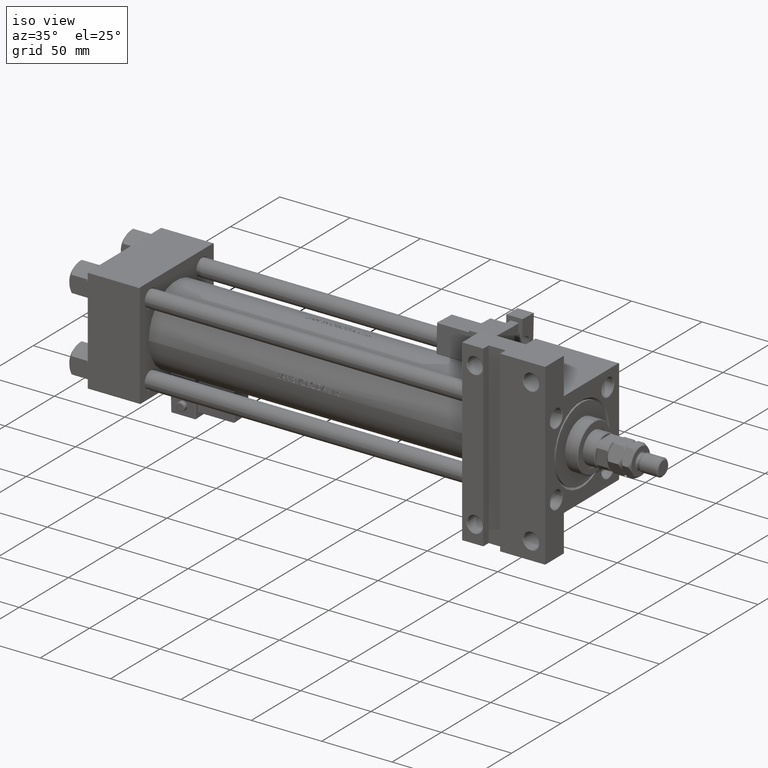
[diagram: clean part render]
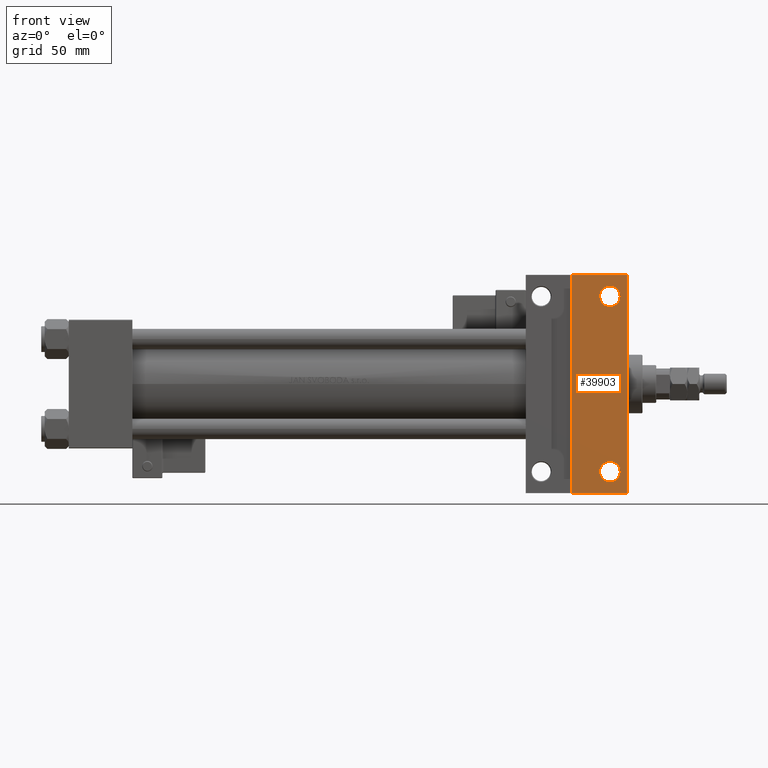
[diagram: tour spotlight — one face highlighted and labeled with its STEP entity id]
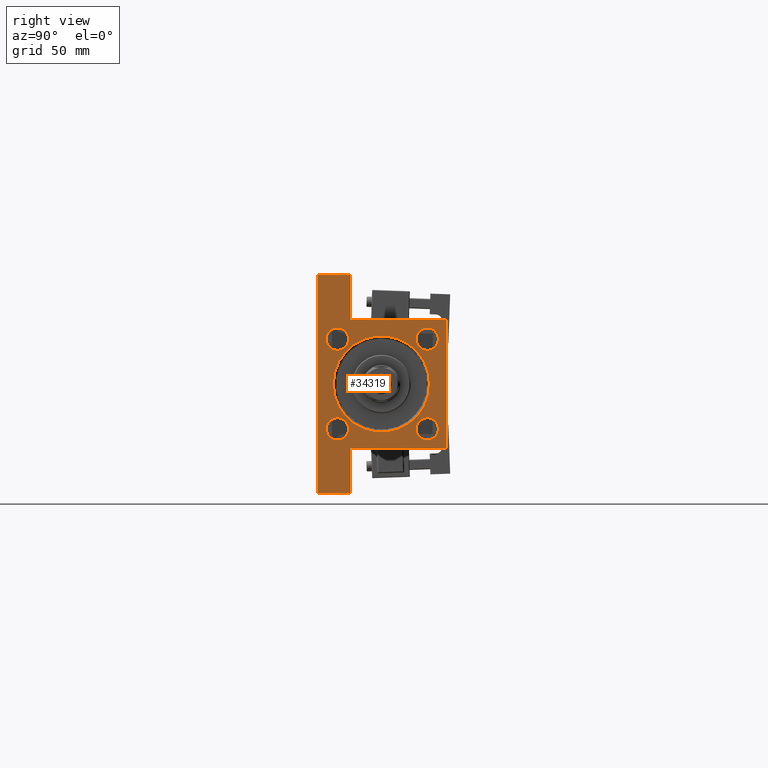
[diagram: tour spotlight — one face highlighted and labeled with its STEP entity id]
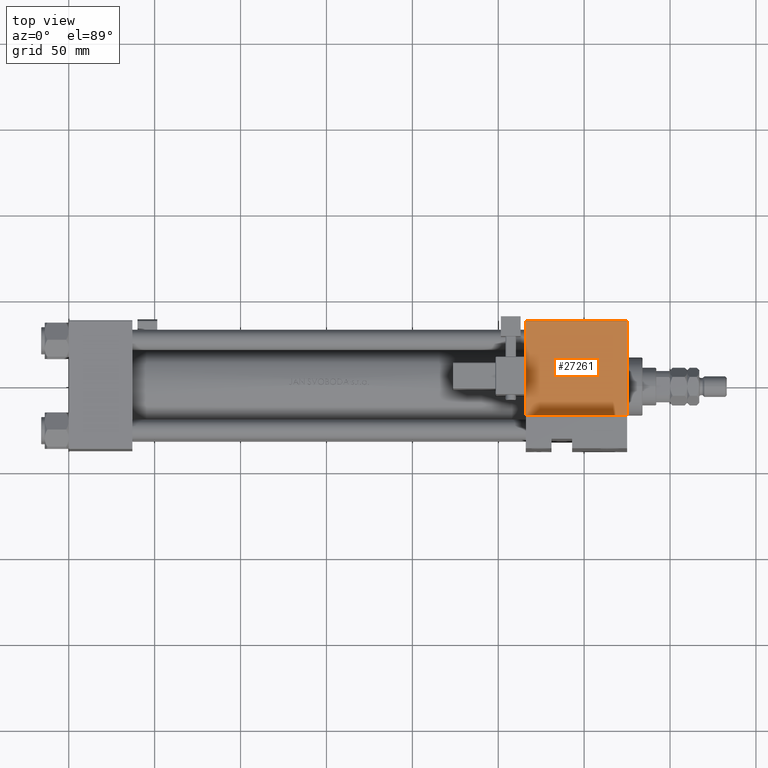
[diagram: tour spotlight — one face highlighted and labeled with its STEP entity id]
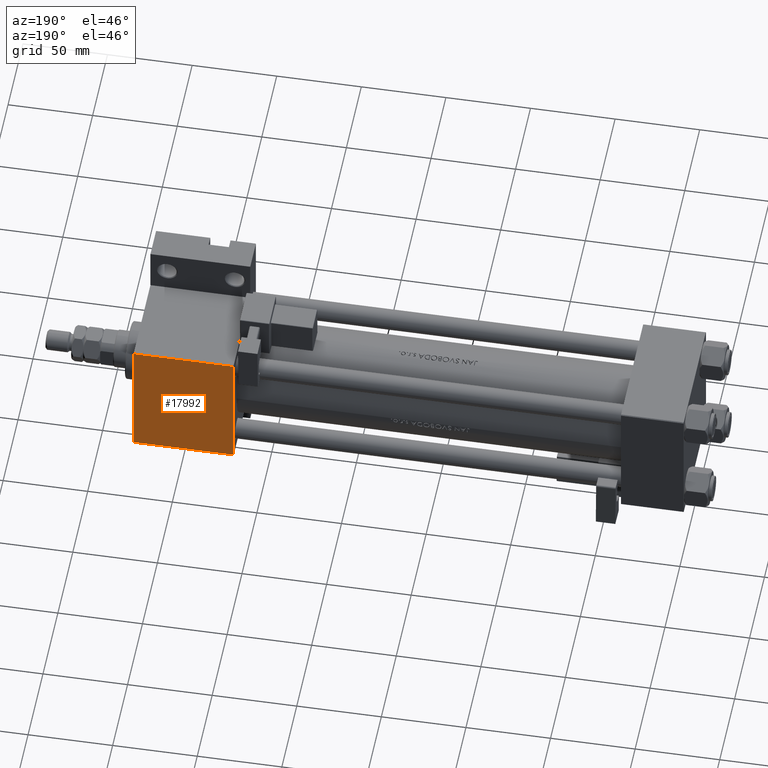
[diagram: tour spotlight — one face highlighted and labeled with its STEP entity id]
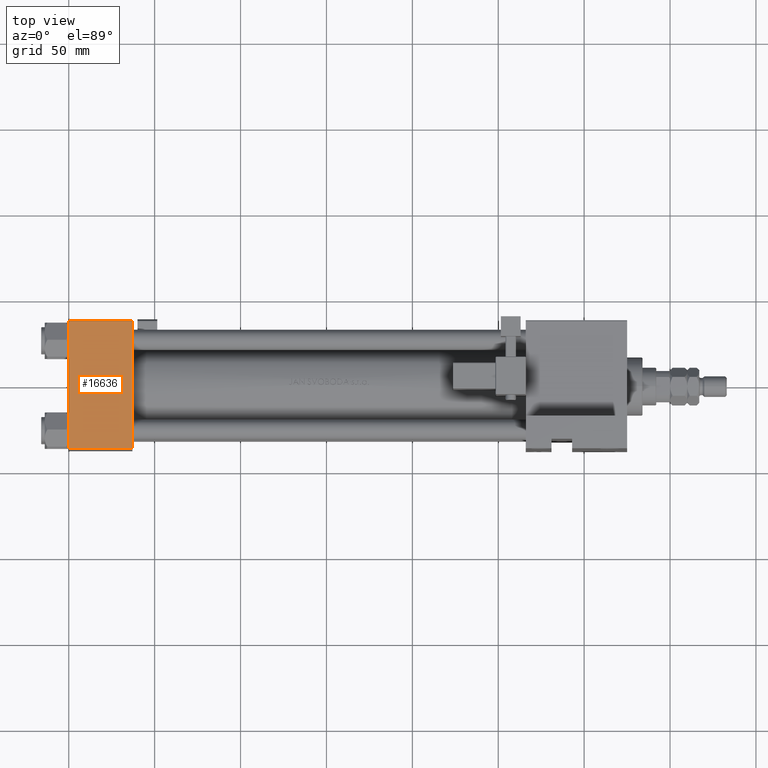
[diagram: tour spotlight — one face highlighted and labeled with its STEP entity id]
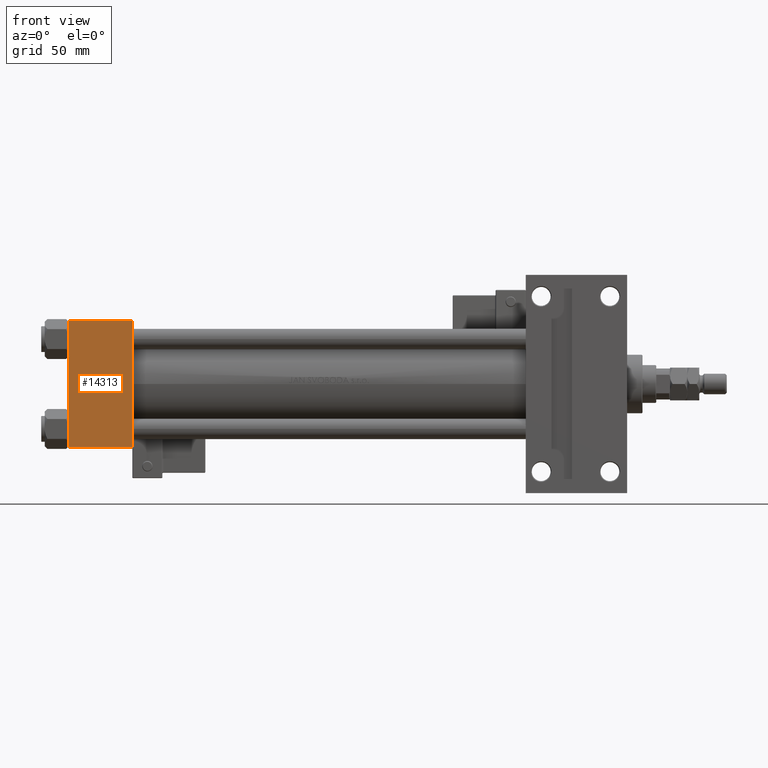
[diagram: tour spotlight — one face highlighted and labeled with its STEP entity id]
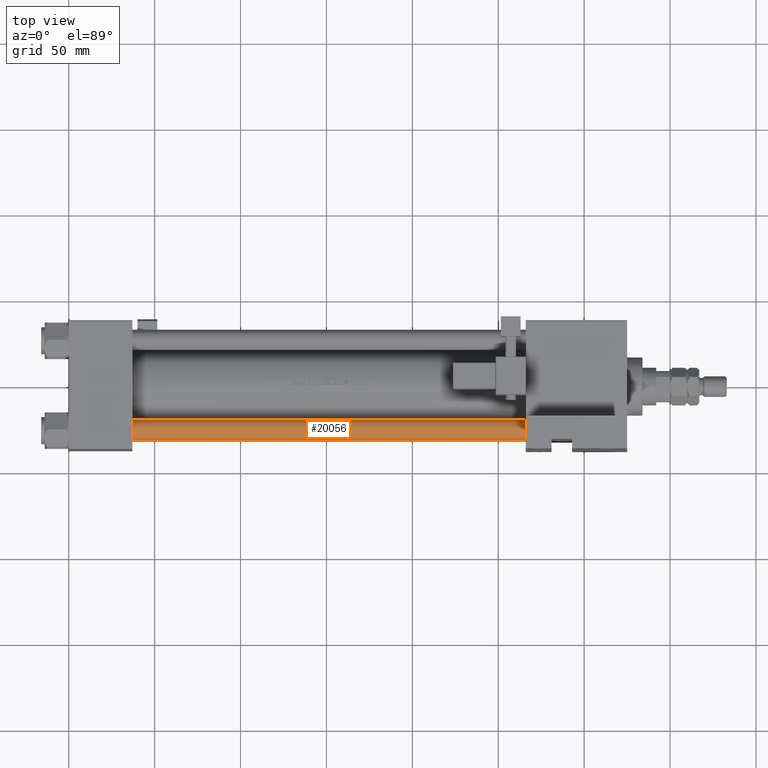
[diagram: tour spotlight — one face highlighted and labeled with its STEP entity id]
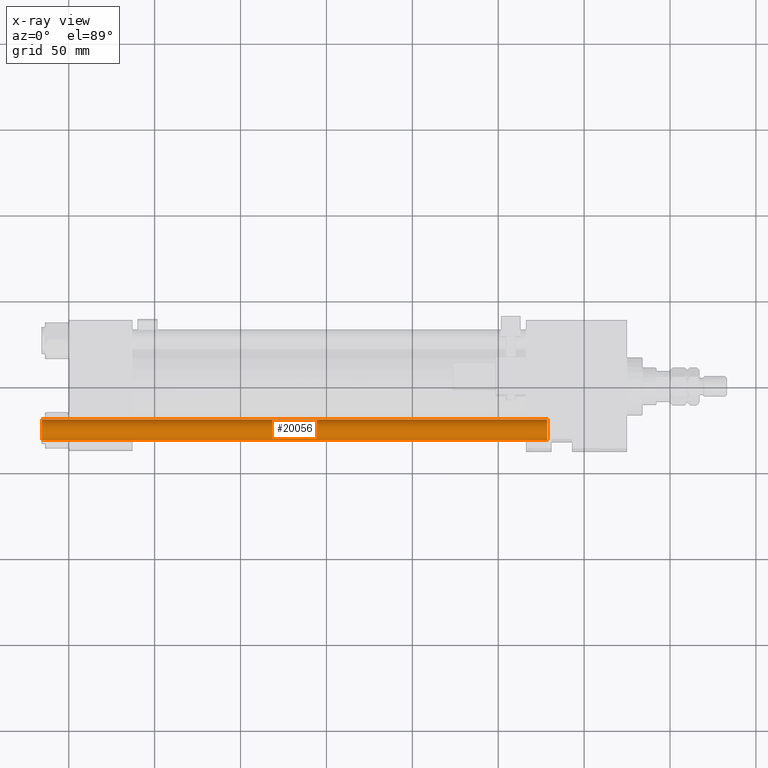
[diagram: x-ray of the same camera — body ghosted, this tour face saturated]
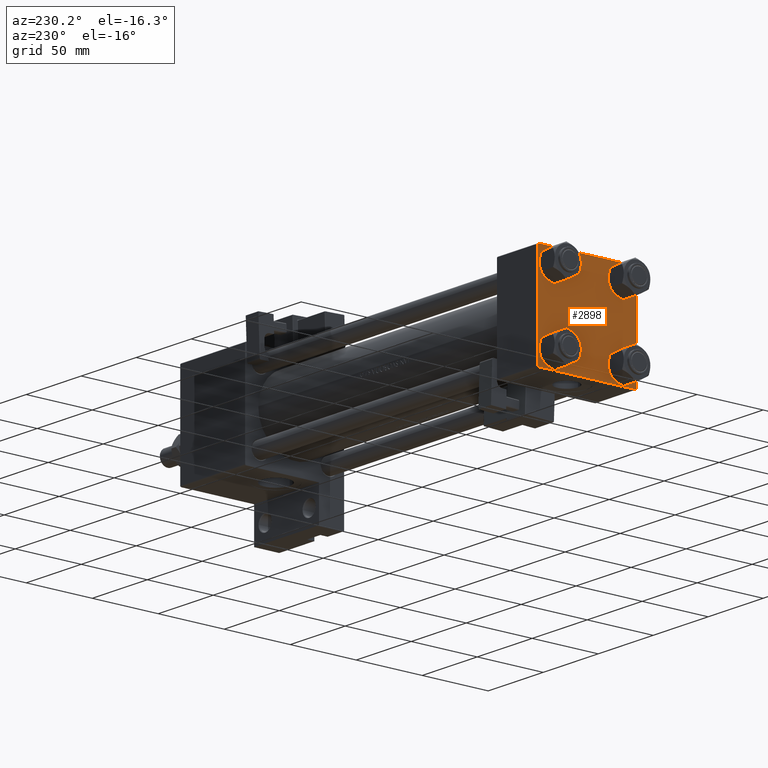
[diagram: tour spotlight — one face highlighted and labeled with its STEP entity id]
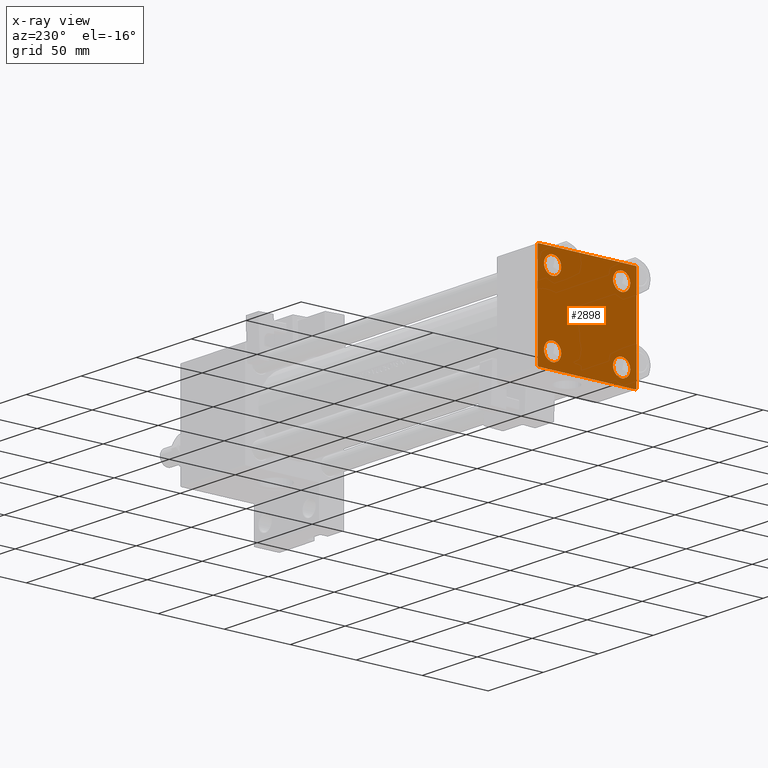
[diagram: x-ray of the same camera — body ghosted, this tour face saturated]
A machine part: a face-by-face anatomy tour. The part has 1306 B-rep faces; the first image is the clean iso view, then the 8 largest visible faces are spotlighted one at a time (largest first), each with its STEP entity span.

Face 1 — front view, entity #39903. In plain terms, the highlighted planar face has unit normal (0, -1, 0).
Definition (entity closure, byte-faithful):
#1192 = AXIS2_PLACEMENT_3D ( 'NONE', #43460, #43960, #39046 ) ;
#1264 = VERTEX_POINT ( 'NONE', #46276 ) ;
#1486 = DIRECTION ( 'NONE',  ( 1.000000000000000000, 0.000000000000000000, 0.000000000000000000 ) ) ;
#1857 = VERTEX_POINT ( 'NONE', #23266 ) ;
#1902 = AXIS2_PLACEMENT_3D ( 'NONE', #41600, #17434, #9111 ) ;
#2002 = LINE ( 'NONE', #37102, #17347 ) ;
#2117 = CARTESIAN_POINT ( 'NONE',  ( 320.9994999999998981, 51.00000000000000000, -37.50000000000000000 ) ) ;
#3148 = DIRECTION ( 'NONE',  ( -1.000000000000000000, 0.000000000000000000, -0.000000000000000000 ) ) ;
#3737 = DIRECTION ( 'NONE',  ( 0.000000000000000000, -1.000000000000000000, 0.000000000000000000 ) ) ;
#5793 = EDGE_CURVE ( 'NONE', #1857, #17843, #2002, .T. ) ;
#9111 = DIRECTION ( 'NONE',  ( -1.000000000000000000, 0.000000000000000000, 0.000000000000000000 ) ) ;
#9635 = EDGE_LOOP ( 'NONE', ( #45994, #32237, #36504, #23169 ) ) ;
#10203 = CIRCLE ( 'NONE', #29264, 5.999499999999935440 ) ;
#10296 = CARTESIAN_POINT ( 'NONE',  ( 266.0000000000000000, -63.50000000000002842, -37.50000000000000000 ) ) ;
#10914 = DIRECTION ( 'NONE',  ( -1.000000000000000000, 0.000000000000000000, 0.000000000000000000 ) ) ;
#12035 = LINE ( 'NONE', #43252, #13206 ) ;
#12417 = LINE ( 'NONE', #28266, #30883 ) ;
#13206 = VECTOR ( 'NONE', #3737, 1000.000000000000000 ) ;
#14489 = EDGE_CURVE ( 'NONE', #28610, #26820, #38540, .T. ) ;
#15378 = FACE_BOUND ( 'NONE', #47813, .T. ) ;
#15465 = EDGE_CURVE ( 'NONE', #1264, #30650, #46741, .T. ) ;
#16024 = CARTESIAN_POINT ( 'NONE',  ( 293.0000000000000000, -63.49999999999998579, -37.50000000000000000 ) ) ;
#17347 = VECTOR ( 'NONE', #1486, 1000.000000000000000 ) ;
#17434 = DIRECTION ( 'NONE',  ( -0.000000000000000000, -0.000000000000000000, 1.000000000000000000 ) ) ;
#17843 = VERTEX_POINT ( 'NONE', #23133 ) ;
#18478 = DIRECTION ( 'NONE',  ( -0.000000000000000000, -0.000000000000000000, 1.000000000000000000 ) ) ;
#19201 = CARTESIAN_POINT ( 'NONE',  ( 325.0000000000000000, -63.50000000000002842, -37.50000000000000000 ) ) ;
#21256 = EDGE_CURVE ( 'NONE', #17843, #40172, #12035, .T. ) ;
#21820 = CARTESIAN_POINT ( 'NONE',  ( 309.0004999999999882, 51.00000000000000000, -37.50000000000000000 ) ) ;
#22120 = ORIENTED_EDGE ( 'NONE', *, *, #36823, .T. ) ;
#23133 = CARTESIAN_POINT ( 'NONE',  ( 325.0000000000000000, 63.49999999999997158, -37.50000000000000000 ) ) ;
#23169 = ORIENTED_EDGE ( 'NONE', *, *, #47069, .T. ) ;
#23266 = CARTESIAN_POINT ( 'NONE',  ( 293.0000000000000000, 63.49999999999997158, -37.50000000000000000 ) ) ;
#23423 = CARTESIAN_POINT ( 'NONE',  ( 325.0000000000000000, 37.50000000000000000, -37.50000000000000000 ) ) ;
#24405 = EDGE_LOOP ( 'NONE', ( #27827, #22120 ) ) ;
#24960 = CARTESIAN_POINT ( 'NONE',  ( 320.9994999999998981, -51.00000000000000000, -37.50000000000000000 ) ) ;
#26820 = VERTEX_POINT ( 'NONE', #2117 ) ;
#27827 = ORIENTED_EDGE ( 'NONE', *, *, #15465, .T. ) ;
#28216 = AXIS2_PLACEMENT_3D ( 'NONE', #50442, #18478, #10914 ) ;
#28266 = CARTESIAN_POINT ( 'NONE',  ( 293.0000000000000000, -63.49999999999998579, -37.50000000000000000 ) ) ;
#28610 = VERTEX_POINT ( 'NONE', #21820 ) ;
#28896 = EDGE_CURVE ( 'NONE', #1857, #36426, #12417, .T. ) ;
#29231 = DIRECTION ( 'NONE',  ( -0.000000000000000000, -0.000000000000000000, 1.000000000000000000 ) ) ;
#29264 = AXIS2_PLACEMENT_3D ( 'NONE', #32900, #29231, #33672 ) ;
#30650 = VERTEX_POINT ( 'NONE', #24960 ) ;
#30703 = PLANE ( 'NONE',  #43652 ) ;
#30847 = EDGE_CURVE ( 'NONE', #26820, #28610, #10203, .T. ) ;
#30883 = VECTOR ( 'NONE', #44126, 1000.000000000000000 ) ;
#31273 = ORIENTED_EDGE ( 'NONE', *, *, #14489, .T. ) ;
#32237 = ORIENTED_EDGE ( 'NONE', *, *, #5793, .T. ) ;
#32900 = CARTESIAN_POINT ( 'NONE',  ( 314.9999999999999432, 51.00000000000000000, -37.50000000000000000 ) ) ;
#33553 = CIRCLE ( 'NONE', #1192, 5.999499999999935440 ) ;
#33672 = DIRECTION ( 'NONE',  ( -1.000000000000000000, 0.000000000000000000, 0.000000000000000000 ) ) ;
#36426 = VERTEX_POINT ( 'NONE', #16024 ) ;
#36504 = ORIENTED_EDGE ( 'NONE', *, *, #21256, .T. ) ;
#36823 = EDGE_CURVE ( 'NONE', #30650, #1264, #33553, .T. ) ;
#37102 = CARTESIAN_POINT ( 'NONE',  ( 266.0000000000000000, 63.49999999999997158, -37.50000000000000000 ) ) ;
#38540 = CIRCLE ( 'NONE', #28216, 5.999499999999935440 ) ;
#38761 = FACE_OUTER_BOUND ( 'NONE', #9635, .T. ) ;
#39046 = DIRECTION ( 'NONE',  ( -1.000000000000000000, 0.000000000000000000, 0.000000000000000000 ) ) ;
#39903 = ADVANCED_FACE ( 'NONE', ( #38761, #50967, #15378 ), #30703, .T. ) ;
#40172 = VERTEX_POINT ( 'NONE', #19201 ) ;
#41600 = CARTESIAN_POINT ( 'NONE',  ( 314.9999999999999432, -51.00000000000000000, -37.50000000000000000 ) ) ;
#42280 = LINE ( 'NONE', #10296, #51362 ) ;
#42791 = DIRECTION ( 'NONE',  ( -1.000000000000000000, -0.000000000000000000, -0.000000000000000000 ) ) ;
#43252 = CARTESIAN_POINT ( 'NONE',  ( 325.0000000000000000, 37.50000000000000000, -37.50000000000000000 ) ) ;
#43460 = CARTESIAN_POINT ( 'NONE',  ( 314.9999999999999432, -51.00000000000000000, -37.50000000000000000 ) ) ;
#43652 = AXIS2_PLACEMENT_3D ( 'NONE', #23423, #46567, #3148 ) ;
#43960 = DIRECTION ( 'NONE',  ( -0.000000000000000000, -0.000000000000000000, 1.000000000000000000 ) ) ;
#44126 = DIRECTION ( 'NONE',  ( -0.000000000000000000, -1.000000000000000000, -0.000000000000000000 ) ) ;
#45994 = ORIENTED_EDGE ( 'NONE', *, *, #28896, .F. ) ;
#46276 = CARTESIAN_POINT ( 'NONE',  ( 309.0004999999999882, -51.00000000000000000, -37.50000000000000000 ) ) ;
#46567 = DIRECTION ( 'NONE',  ( 0.000000000000000000, 0.000000000000000000, -1.000000000000000000 ) ) ;
#46650 = ORIENTED_EDGE ( 'NONE', *, *, #30847, .T. ) ;
#46741 = CIRCLE ( 'NONE', #1902, 5.999499999999935440 ) ;
#47069 = EDGE_CURVE ( 'NONE', #40172, #36426, #42280, .T. ) ;
#47813 = EDGE_LOOP ( 'NONE', ( #31273, #46650 ) ) ;
#50442 = CARTESIAN_POINT ( 'NONE',  ( 314.9999999999999432, 51.00000000000000000, -37.50000000000000000 ) ) ;
#50967 = FACE_BOUND ( 'NONE', #24405, .T. ) ;
#51362 = VECTOR ( 'NONE', #42791, 1000.000000000000000 ) ;

Face 2 — right view, entity #34319. In plain terms, the highlighted planar face has unit normal (-1, 0, 0).
Definition (entity closure, byte-faithful):
#210 = VERTEX_POINT ( 'NONE', #1415 ) ;
#236 = VECTOR ( 'NONE', #16226, 1000.000000000000000 ) ;
#1199 = DIRECTION ( 'NONE',  ( 0.000000000000000000, 0.000000000000000000, -1.000000000000000000 ) ) ;
#1353 = FACE_OUTER_BOUND ( 'NONE', #11278, .T. ) ;
#1410 = DIRECTION ( 'NONE',  ( 0.000000000000000000, 0.000000000000000000, 1.000000000000000000 ) ) ;
#1415 = CARTESIAN_POINT ( 'NONE',  ( 325.0000000000000000, 63.49999999999997158, -18.50000000000000000 ) ) ;
#1727 = EDGE_CURVE ( 'NONE', #46772, #5293, #8729, .T. ) ;
#2943 = CIRCLE ( 'NONE', #36114, 28.00000000000002487 ) ;
#3716 = CARTESIAN_POINT ( 'NONE',  ( 325.0000000000000000, 0.000000000000000000, -0.5000000000000004441 ) ) ;
#3737 = DIRECTION ( 'NONE',  ( 0.000000000000000000, -1.000000000000000000, 0.000000000000000000 ) ) ;
#3788 = CARTESIAN_POINT ( 'NONE',  ( 325.0000000000000000, 0.000000000000000000, 0.000000000000000000 ) ) ;
#4054 = CARTESIAN_POINT ( 'NONE',  ( 325.0000000000000000, 0.000000000000000000, -28.50000000000002487 ) ) ;
#4582 = CARTESIAN_POINT ( 'NONE',  ( 325.0000000000000000, 37.50000000000000000, 37.49999999999999289 ) ) ;
#5130 = ORIENTED_EDGE ( 'NONE', *, *, #21256, .F. ) ;
#5293 = VERTEX_POINT ( 'NONE', #31230 ) ;
#5294 = DIRECTION ( 'NONE',  ( -1.000000000000000000, -0.000000000000000000, 0.000000000000000000 ) ) ;
#5438 = DIRECTION ( 'NONE',  ( 0.000000000000000000, -0.7071067811865474617, 0.7071067811865474617 ) ) ;
#6764 = CARTESIAN_POINT ( 'NONE',  ( 325.0000000000000000, -37.00000000000000000, 37.49999999999997868 ) ) ;
#7178 = CARTESIAN_POINT ( 'NONE',  ( 325.0000000000000000, 26.14999999999999858, 26.15000000000000213 ) ) ;
#7388 = VERTEX_POINT ( 'NONE', #22241 ) ;
#7728 = EDGE_CURVE ( 'NONE', #48686, #13827, #9924, .T. ) ;
#8352 = VERTEX_POINT ( 'NONE', #36752 ) ;
#8475 = DIRECTION ( 'NONE',  ( -1.000000000000000000, -0.000000000000000000, 0.000000000000000000 ) ) ;
#8661 = LINE ( 'NONE', #32584, #236 ) ;
#8729 = LINE ( 'NONE', #4582, #12996 ) ;
#8886 = FACE_BOUND ( 'NONE', #45776, .T. ) ;
#9348 = VECTOR ( 'NONE', #26177, 1000.000000000000000 ) ;
#9544 = CARTESIAN_POINT ( 'NONE',  ( 325.0000000000000000, -26.15000000000000213, -32.65000000000001279 ) ) ;
#9710 = EDGE_CURVE ( 'NONE', #7388, #25216, #46796, .T. ) ;
#9924 = CIRCLE ( 'NONE', #38990, 6.500000000000002665 ) ;
#10247 = VECTOR ( 'NONE', #49640, 1000.000000000000000 ) ;
#10706 = ORIENTED_EDGE ( 'NONE', *, *, #51091, .T. ) ;
#11065 = DIRECTION ( 'NONE',  ( 0.000000000000000000, 0.000000000000000000, 1.000000000000000000 ) ) ;
#11278 = EDGE_LOOP ( 'NONE', ( #38179, #44424, #43715, #33870, #25323, #46709, #18342, #5130, #17521, #13245 ) ) ;
#11640 = VERTEX_POINT ( 'NONE', #35746 ) ;
#11736 = VECTOR ( 'NONE', #45688, 1000.000000000000000 ) ;
#11767 = CIRCLE ( 'NONE', #30852, 6.500000000000002665 ) ;
#12035 = LINE ( 'NONE', #43252, #13206 ) ;
#12694 = AXIS2_PLACEMENT_3D ( 'NONE', #48728, #48474, #24814 ) ;
#12834 = DIRECTION ( 'NONE',  ( 0.000000000000000000, 0.000000000000000000, 1.000000000000000000 ) ) ;
#12996 = VECTOR ( 'NONE', #1199, 1000.000000000000000 ) ;
#13048 = FACE_BOUND ( 'NONE', #47308, .T. ) ;
#13206 = VECTOR ( 'NONE', #3737, 1000.000000000000000 ) ;
#13245 = ORIENTED_EDGE ( 'NONE', *, *, #14867, .T. ) ;
#13827 = VERTEX_POINT ( 'NONE', #19635 ) ;
#13902 = CARTESIAN_POINT ( 'NONE',  ( 325.0000000000000000, 3.429011037612592037E-15, 27.50000000000002487 ) ) ;
#13961 = EDGE_CURVE ( 'NONE', #25216, #7388, #21959, .T. ) ;
#14023 = EDGE_LOOP ( 'NONE', ( #16450, #33129 ) ) ;
#14483 = VERTEX_POINT ( 'NONE', #42636 ) ;
#14545 = DIRECTION ( 'NONE',  ( -1.000000000000000000, -0.000000000000000000, 0.000000000000000000 ) ) ;
#14867 = EDGE_CURVE ( 'NONE', #210, #5293, #34797, .T. ) ;
#15128 = ORIENTED_EDGE ( 'NONE', *, *, #27538, .T. ) ;
#15504 = DIRECTION ( 'NONE',  ( 0.000000000000000000, 0.000000000000000000, 1.000000000000000000 ) ) ;
#15711 = CIRCLE ( 'NONE', #38115, 6.500000000000002665 ) ;
#15992 = DIRECTION ( 'NONE',  ( 0.000000000000000000, -1.000000000000000000, 0.000000000000000000 ) ) ;
#16226 = DIRECTION ( 'NONE',  ( 0.000000000000000000, -9.251858538542972814E-17, -1.000000000000000000 ) ) ;
#16450 = ORIENTED_EDGE ( 'NONE', *, *, #13961, .T. ) ;
#16740 = CARTESIAN_POINT ( 'NONE',  ( 325.0000000000000000, -26.14999999999999147, 26.14999999999999503 ) ) ;
#16934 = AXIS2_PLACEMENT_3D ( 'NONE', #16740, #49486, #12834 ) ;
#17075 = EDGE_LOOP ( 'NONE', ( #47095, #32996 ) ) ;
#17473 = ORIENTED_EDGE ( 'NONE', *, *, #27981, .T. ) ;
#17521 = ORIENTED_EDGE ( 'NONE', *, *, #25092, .F. ) ;
#17843 = VERTEX_POINT ( 'NONE', #23133 ) ;
#18342 = ORIENTED_EDGE ( 'NONE', *, *, #24174, .T. ) ;
#18469 = CARTESIAN_POINT ( 'NONE',  ( 325.0000000000000000, 26.14999999999999858, -26.15000000000000213 ) ) ;
#18869 = ORIENTED_EDGE ( 'NONE', *, *, #31318, .T. ) ;
#18893 = CARTESIAN_POINT ( 'NONE',  ( 325.0000000000000000, 37.50000000000000000, 37.49999999999999289 ) ) ;
#19161 = DIRECTION ( 'NONE',  ( 0.000000000000000000, 0.000000000000000000, -1.000000000000000000 ) ) ;
#19201 = CARTESIAN_POINT ( 'NONE',  ( 325.0000000000000000, -63.50000000000002842, -37.50000000000000000 ) ) ;
#19635 = CARTESIAN_POINT ( 'NONE',  ( 325.0000000000000000, 26.14999999999999858, -32.65000000000001279 ) ) ;
#19911 = FACE_BOUND ( 'NONE', #14023, .T. ) ;
#20203 = VERTEX_POINT ( 'NONE', #13902 ) ;
#20214 = AXIS2_PLACEMENT_3D ( 'NONE', #44094, #8475, #40187 ) ;
#20761 = VERTEX_POINT ( 'NONE', #33723 ) ;
#21256 = EDGE_CURVE ( 'NONE', #17843, #40172, #12035, .T. ) ;
#21257 = LINE ( 'NONE', #37377, #11736 ) ;
#21959 = CIRCLE ( 'NONE', #16934, 6.500000000000002665 ) ;
#22241 = CARTESIAN_POINT ( 'NONE',  ( 325.0000000000000000, -26.14999999999999147, 32.64999999999999858 ) ) ;
#22585 = DIRECTION ( 'NONE',  ( -1.000000000000000000, -0.000000000000000000, 0.000000000000000000 ) ) ;
#22623 = DIRECTION ( 'NONE',  ( -1.000000000000000000, -0.000000000000000000, 0.000000000000000000 ) ) ;
#22905 = EDGE_CURVE ( 'NONE', #11640, #25286, #25728, .T. ) ;
#22984 = EDGE_CURVE ( 'NONE', #46772, #29949, #41323, .T. ) ;
#23133 = CARTESIAN_POINT ( 'NONE',  ( 325.0000000000000000, 63.49999999999997158, -37.50000000000000000 ) ) ;
#24174 = EDGE_CURVE ( 'NONE', #25286, #40172, #21257, .T. ) ;
#24814 = DIRECTION ( 'NONE',  ( 0.000000000000000000, 0.000000000000000000, 1.000000000000000000 ) ) ;
#25092 = EDGE_CURVE ( 'NONE', #210, #17843, #39438, .T. ) ;
#25216 = VERTEX_POINT ( 'NONE', #36547 ) ;
#25286 = VERTEX_POINT ( 'NONE', #42495 ) ;
#25323 = ORIENTED_EDGE ( 'NONE', *, *, #25448, .T. ) ;
#25448 = EDGE_CURVE ( 'NONE', #20761, #11640, #8661, .T. ) ;
#25458 = CARTESIAN_POINT ( 'NONE',  ( 325.0000000000000000, 37.50000000000000000, 36.99999999999999289 ) ) ;
#25728 = LINE ( 'NONE', #37430, #10247 ) ;
#25970 = DIRECTION ( 'NONE',  ( 0.000000000000000000, 0.000000000000000000, 1.000000000000000000 ) ) ;
#25979 = CARTESIAN_POINT ( 'NONE',  ( 325.0000000000000000, 37.00000000000000000, 37.49999999999999289 ) ) ;
#26177 = DIRECTION ( 'NONE',  ( 0.000000000000000000, -1.000000000000000000, -1.850371707708594316E-16 ) ) ;
#27181 = PLANE ( 'NONE',  #28564 ) ;
#27508 = CIRCLE ( 'NONE', #44097, 6.500000000000002665 ) ;
#27538 = EDGE_CURVE ( 'NONE', #14483, #33181, #34982, .T. ) ;
#27969 = EDGE_CURVE ( 'NONE', #13827, #48686, #27508, .T. ) ;
#27981 = EDGE_CURVE ( 'NONE', #33181, #14483, #11767, .T. ) ;
#28564 = AXIS2_PLACEMENT_3D ( 'NONE', #3788, #28889, #15504 ) ;
#28889 = DIRECTION ( 'NONE',  ( -1.000000000000000000, -0.000000000000000000, 0.000000000000000000 ) ) ;
#29825 = CARTESIAN_POINT ( 'NONE',  ( 325.0000000000000000, 26.14999999999999858, 26.15000000000000213 ) ) ;
#29846 = EDGE_CURVE ( 'NONE', #29949, #37730, #30585, .T. ) ;
#29949 = VERTEX_POINT ( 'NONE', #51118 ) ;
#30110 = CARTESIAN_POINT ( 'NONE',  ( 325.0000000000000000, 26.14999999999999858, -26.15000000000000213 ) ) ;
#30397 = EDGE_CURVE ( 'NONE', #37730, #20761, #48685, .T. ) ;
#30585 = LINE ( 'NONE', #18893, #9348 ) ;
#30852 = AXIS2_PLACEMENT_3D ( 'NONE', #34283, #22585, #25970 ) ;
#30888 = DIRECTION ( 'NONE',  ( 0.000000000000000000, 0.000000000000000000, 1.000000000000000000 ) ) ;
#31230 = CARTESIAN_POINT ( 'NONE',  ( 325.0000000000000000, 37.49999999999996447, -18.50000000000000000 ) ) ;
#31318 = EDGE_CURVE ( 'NONE', #32137, #20203, #45082, .T. ) ;
#31385 = CARTESIAN_POINT ( 'NONE',  ( 325.0000000000000000, 63.49999999999997158, -18.50000000000000000 ) ) ;
#32137 = VERTEX_POINT ( 'NONE', #4054 ) ;
#32584 = CARTESIAN_POINT ( 'NONE',  ( 325.0000000000000000, -37.50000000000000000, 37.49999999999997868 ) ) ;
#32589 = VECTOR ( 'NONE', #41399, 1000.000000000000114 ) ;
#32996 = ORIENTED_EDGE ( 'NONE', *, *, #7728, .T. ) ;
#33129 = ORIENTED_EDGE ( 'NONE', *, *, #9710, .T. ) ;
#33149 = EDGE_LOOP ( 'NONE', ( #17473, #15128 ) ) ;
#33181 = VERTEX_POINT ( 'NONE', #9544 ) ;
#33587 = CARTESIAN_POINT ( 'NONE',  ( 325.0000000000000000, 26.14999999999999858, 32.65000000000000568 ) ) ;
#33723 = CARTESIAN_POINT ( 'NONE',  ( 325.0000000000000000, -37.50000000000000000, 36.99999999999997868 ) ) ;
#33740 = ORIENTED_EDGE ( 'NONE', *, *, #34257, .T. ) ;
#33870 = ORIENTED_EDGE ( 'NONE', *, *, #30397, .T. ) ;
#34250 = DIRECTION ( 'NONE',  ( -1.000000000000000000, -0.000000000000000000, 0.000000000000000000 ) ) ;
#34257 = EDGE_CURVE ( 'NONE', #48683, #8352, #47710, .T. ) ;
#34283 = CARTESIAN_POINT ( 'NONE',  ( 325.0000000000000000, -26.15000000000000213, -26.15000000000000213 ) ) ;
#34319 = ADVANCED_FACE ( 'NONE', ( #8886, #19911, #47214, #43049, #13048, #1353 ), #27181, .F. ) ;
#34328 = DIRECTION ( 'NONE',  ( 0.000000000000000000, 0.000000000000000000, 1.000000000000000000 ) ) ;
#34510 = DIRECTION ( 'NONE',  ( 0.000000000000000000, 0.000000000000000000, 1.000000000000000000 ) ) ;
#34797 = LINE ( 'NONE', #35747, #45662 ) ;
#34982 = CIRCLE ( 'NONE', #41607, 6.500000000000002665 ) ;
#35165 = VECTOR ( 'NONE', #5438, 1000.000000000000114 ) ;
#35572 = ORIENTED_EDGE ( 'NONE', *, *, #38912, .T. ) ;
#35746 = CARTESIAN_POINT ( 'NONE',  ( 325.0000000000000000, -37.50000000000000711, -18.50000000000000355 ) ) ;
#35747 = CARTESIAN_POINT ( 'NONE',  ( 325.0000000000000000, 63.49999999999997158, -18.50000000000000000 ) ) ;
#36076 = AXIS2_PLACEMENT_3D ( 'NONE', #7178, #45910, #11065 ) ;
#36114 = AXIS2_PLACEMENT_3D ( 'NONE', #3716, #50513, #43488 ) ;
#36547 = CARTESIAN_POINT ( 'NONE',  ( 325.0000000000000000, -26.14999999999999147, 19.64999999999999503 ) ) ;
#36752 = CARTESIAN_POINT ( 'NONE',  ( 325.0000000000000000, 26.14999999999999858, 19.65000000000000213 ) ) ;
#37377 = CARTESIAN_POINT ( 'NONE',  ( 325.0000000000000000, -63.50000000000002842, -18.50000000000000000 ) ) ;
#37430 = CARTESIAN_POINT ( 'NONE',  ( 325.0000000000000000, -63.50000000000002842, -18.50000000000000000 ) ) ;
#37730 = VERTEX_POINT ( 'NONE', #6764 ) ;
#38115 = AXIS2_PLACEMENT_3D ( 'NONE', #29825, #34250, #34510 ) ;
#38179 = ORIENTED_EDGE ( 'NONE', *, *, #1727, .F. ) ;
#38912 = EDGE_CURVE ( 'NONE', #20203, #32137, #2943, .T. ) ;
#38990 = AXIS2_PLACEMENT_3D ( 'NONE', #18469, #22623, #34328 ) ;
#39438 = LINE ( 'NONE', #31385, #45865 ) ;
#40172 = VERTEX_POINT ( 'NONE', #19201 ) ;
#40187 = DIRECTION ( 'NONE',  ( 0.000000000000000000, 0.000000000000000000, 1.000000000000000000 ) ) ;
#40921 = CARTESIAN_POINT ( 'NONE',  ( 325.0000000000000000, -26.15000000000000213, -26.15000000000000213 ) ) ;
#41323 = LINE ( 'NONE', #25979, #35165 ) ;
#41399 = DIRECTION ( 'NONE',  ( -0.000000000000000000, -0.7071067811865474617, -0.7071067811865474617 ) ) ;
#41607 = AXIS2_PLACEMENT_3D ( 'NONE', #40921, #5294, #1410 ) ;
#42495 = CARTESIAN_POINT ( 'NONE',  ( 325.0000000000000000, -63.50000000000002842, -18.50000000000000000 ) ) ;
#42636 = CARTESIAN_POINT ( 'NONE',  ( 325.0000000000000000, -26.15000000000000213, -19.64999999999999858 ) ) ;
#43049 = FACE_BOUND ( 'NONE', #17075, .T. ) ;
#43252 = CARTESIAN_POINT ( 'NONE',  ( 325.0000000000000000, 37.50000000000000000, -37.50000000000000000 ) ) ;
#43488 = DIRECTION ( 'NONE',  ( 0.000000000000000000, 0.000000000000000000, 1.000000000000000000 ) ) ;
#43715 = ORIENTED_EDGE ( 'NONE', *, *, #29846, .T. ) ;
#44094 = CARTESIAN_POINT ( 'NONE',  ( 325.0000000000000000, -26.14999999999999147, 26.14999999999999503 ) ) ;
#44097 = AXIS2_PLACEMENT_3D ( 'NONE', #30110, #14545, #30888 ) ;
#44424 = ORIENTED_EDGE ( 'NONE', *, *, #22984, .T. ) ;
#44514 = CARTESIAN_POINT ( 'NONE',  ( 325.0000000000000000, -37.50000000000000000, 36.99999999999997868 ) ) ;
#45082 = CIRCLE ( 'NONE', #12694, 28.00000000000002487 ) ;
#45662 = VECTOR ( 'NONE', #15992, 1000.000000000000000 ) ;
#45688 = DIRECTION ( 'NONE',  ( 0.000000000000000000, 0.000000000000000000, -1.000000000000000000 ) ) ;
#45776 = EDGE_LOOP ( 'NONE', ( #10706, #33740 ) ) ;
#45865 = VECTOR ( 'NONE', #19161, 1000.000000000000000 ) ;
#45910 = DIRECTION ( 'NONE',  ( -1.000000000000000000, -0.000000000000000000, 0.000000000000000000 ) ) ;
#46709 = ORIENTED_EDGE ( 'NONE', *, *, #22905, .T. ) ;
#46772 = VERTEX_POINT ( 'NONE', #25458 ) ;
#46796 = CIRCLE ( 'NONE', #20214, 6.500000000000002665 ) ;
#47095 = ORIENTED_EDGE ( 'NONE', *, *, #27969, .T. ) ;
#47214 = FACE_BOUND ( 'NONE', #33149, .T. ) ;
#47308 = EDGE_LOOP ( 'NONE', ( #18869, #35572 ) ) ;
#47710 = CIRCLE ( 'NONE', #36076, 6.500000000000002665 ) ;
#48474 = DIRECTION ( 'NONE',  ( -1.000000000000000000, -0.000000000000000000, 0.000000000000000000 ) ) ;
#48683 = VERTEX_POINT ( 'NONE', #33587 ) ;
#48685 = LINE ( 'NONE', #44514, #32589 ) ;
#48686 = VERTEX_POINT ( 'NONE', #49448 ) ;
#48728 = CARTESIAN_POINT ( 'NONE',  ( 325.0000000000000000, 0.000000000000000000, -0.5000000000000004441 ) ) ;
#49448 = CARTESIAN_POINT ( 'NONE',  ( 325.0000000000000000, 26.14999999999999858, -19.64999999999999858 ) ) ;
#49486 = DIRECTION ( 'NONE',  ( -1.000000000000000000, -0.000000000000000000, 0.000000000000000000 ) ) ;
#49640 = DIRECTION ( 'NONE',  ( -0.000000000000000000, -1.000000000000000000, -0.000000000000000000 ) ) ;
#50513 = DIRECTION ( 'NONE',  ( -1.000000000000000000, -0.000000000000000000, 0.000000000000000000 ) ) ;
#51091 = EDGE_CURVE ( 'NONE', #8352, #48683, #15711, .T. ) ;
#51118 = CARTESIAN_POINT ( 'NONE',  ( 325.0000000000000000, 37.00000000000000000, 37.49999999999999289 ) ) ;

Face 3 — top view, entity #27261. In plain terms, the highlighted planar face has unit normal (0, -0, -1).
Definition (entity closure, byte-faithful):
#236 = VECTOR ( 'NONE', #16226, 1000.000000000000000 ) ;
#1988 = PLANE ( 'NONE',  #26654 ) ;
#2496 = ORIENTED_EDGE ( 'NONE', *, *, #6909, .T. ) ;
#4484 = VECTOR ( 'NONE', #9062, 1000.000000000000000 ) ;
#5524 = VERTEX_POINT ( 'NONE', #5954 ) ;
#5923 = LINE ( 'NONE', #49604, #32307 ) ;
#5954 = CARTESIAN_POINT ( 'NONE',  ( 266.0000000000000000, -37.50000000000000000, 36.99999999999997868 ) ) ;
#6759 = CARTESIAN_POINT ( 'NONE',  ( 266.0000000000000000, -37.50000000000000000, -18.50000000000000000 ) ) ;
#6909 = EDGE_CURVE ( 'NONE', #5524, #24763, #5923, .T. ) ;
#7670 = EDGE_CURVE ( 'NONE', #24763, #11640, #43155, .T. ) ;
#8661 = LINE ( 'NONE', #32584, #236 ) ;
#9062 = DIRECTION ( 'NONE',  ( -1.000000000000000000, 0.000000000000000000, 0.000000000000000000 ) ) ;
#9947 = CARTESIAN_POINT ( 'NONE',  ( 266.0000000000000000, -37.50000000000000000, -18.50000000000000000 ) ) ;
#10549 = DIRECTION ( 'NONE',  ( 0.000000000000000000, 1.000000000000000000, -9.251858538542972814E-17 ) ) ;
#11640 = VERTEX_POINT ( 'NONE', #35746 ) ;
#16226 = DIRECTION ( 'NONE',  ( 0.000000000000000000, -9.251858538542972814E-17, -1.000000000000000000 ) ) ;
#16367 = CARTESIAN_POINT ( 'NONE',  ( 325.0000000000000000, -37.50000000000000000, 36.99999999999997868 ) ) ;
#18392 = ORIENTED_EDGE ( 'NONE', *, *, #7670, .T. ) ;
#18914 = DIRECTION ( 'NONE',  ( 0.000000000000000000, -9.251858538542972814E-17, -1.000000000000000000 ) ) ;
#20761 = VERTEX_POINT ( 'NONE', #33723 ) ;
#21544 = LINE ( 'NONE', #16367, #4484 ) ;
#24763 = VERTEX_POINT ( 'NONE', #9947 ) ;
#25448 = EDGE_CURVE ( 'NONE', #20761, #11640, #8661, .T. ) ;
#26409 = DIRECTION ( 'NONE',  ( 0.000000000000000000, 9.251858538542972814E-17, 1.000000000000000000 ) ) ;
#26654 = AXIS2_PLACEMENT_3D ( 'NONE', #46168, #10549, #26409 ) ;
#27261 = ADVANCED_FACE ( 'NONE', ( #34471 ), #1988, .F. ) ;
#32161 = EDGE_LOOP ( 'NONE', ( #41925, #35534, #2496, #18392 ) ) ;
#32307 = VECTOR ( 'NONE', #18914, 1000.000000000000000 ) ;
#32338 = VECTOR ( 'NONE', #42894, 1000.000000000000000 ) ;
#32584 = CARTESIAN_POINT ( 'NONE',  ( 325.0000000000000000, -37.50000000000000000, 37.49999999999997868 ) ) ;
#33723 = CARTESIAN_POINT ( 'NONE',  ( 325.0000000000000000, -37.50000000000000000, 36.99999999999997868 ) ) ;
#34471 = FACE_OUTER_BOUND ( 'NONE', #32161, .T. ) ;
#35534 = ORIENTED_EDGE ( 'NONE', *, *, #37055, .T. ) ;
#35746 = CARTESIAN_POINT ( 'NONE',  ( 325.0000000000000000, -37.50000000000000711, -18.50000000000000355 ) ) ;
#37055 = EDGE_CURVE ( 'NONE', #20761, #5524, #21544, .T. ) ;
#41925 = ORIENTED_EDGE ( 'NONE', *, *, #25448, .F. ) ;
#42894 = DIRECTION ( 'NONE',  ( 1.000000000000000000, -3.528251137579946599E-16, 0.000000000000000000 ) ) ;
#43155 = LINE ( 'NONE', #6759, #32338 ) ;
#46168 = CARTESIAN_POINT ( 'NONE',  ( 325.0000000000000000, -37.50000000000000000, 37.49999999999997868 ) ) ;
#49604 = CARTESIAN_POINT ( 'NONE',  ( 266.0000000000000000, -37.50000000000000000, 37.49999999999997868 ) ) ;

Face 4 — auxiliary view, entity #17992. In plain terms, the highlighted planar face has unit normal (0, -1, -0).
Definition (entity closure, byte-faithful):
#134 = ORIENTED_EDGE ( 'NONE', *, *, #45973, .T. ) ;
#135 = VECTOR ( 'NONE', #21754, 1000.000000000000000 ) ;
#755 = FACE_OUTER_BOUND ( 'NONE', #23734, .T. ) ;
#6764 = CARTESIAN_POINT ( 'NONE',  ( 325.0000000000000000, -37.00000000000000000, 37.49999999999997868 ) ) ;
#7354 = VERTEX_POINT ( 'NONE', #30540 ) ;
#8440 = DIRECTION ( 'NONE',  ( -1.000000000000000000, 0.000000000000000000, 0.000000000000000000 ) ) ;
#8534 = DIRECTION ( 'NONE',  ( 0.000000000000000000, 1.000000000000000000, 1.850371707708594316E-16 ) ) ;
#8791 = DIRECTION ( 'NONE',  ( 0.000000000000000000, 1.850371707708594316E-16, -1.000000000000000000 ) ) ;
#9348 = VECTOR ( 'NONE', #26177, 1000.000000000000000 ) ;
#16098 = CARTESIAN_POINT ( 'NONE',  ( 325.0000000000000000, 37.50000000000000000, 37.49999999999999289 ) ) ;
#16257 = CARTESIAN_POINT ( 'NONE',  ( 266.0000000000000000, 37.00000000000000000, 37.49999999999999289 ) ) ;
#16486 = VECTOR ( 'NONE', #8440, 1000.000000000000000 ) ;
#17524 = LINE ( 'NONE', #22200, #46780 ) ;
#17860 = LINE ( 'NONE', #33982, #135 ) ;
#17992 = ADVANCED_FACE ( 'NONE', ( #755 ), #43906, .F. ) ;
#18893 = CARTESIAN_POINT ( 'NONE',  ( 325.0000000000000000, 37.50000000000000000, 37.49999999999999289 ) ) ;
#20739 = ORIENTED_EDGE ( 'NONE', *, *, #29846, .F. ) ;
#21754 = DIRECTION ( 'NONE',  ( 1.000000000000000000, 0.000000000000000000, 0.000000000000000000 ) ) ;
#22200 = CARTESIAN_POINT ( 'NONE',  ( 266.0000000000000000, 37.50000000000000000, 37.49999999999999289 ) ) ;
#22588 = ORIENTED_EDGE ( 'NONE', *, *, #31487, .T. ) ;
#22646 = VERTEX_POINT ( 'NONE', #25422 ) ;
#23734 = EDGE_LOOP ( 'NONE', ( #20739, #134, #22588, #32011 ) ) ;
#25422 = CARTESIAN_POINT ( 'NONE',  ( 266.0000000000000000, 37.00000000000000000, 37.49999999999999289 ) ) ;
#26177 = DIRECTION ( 'NONE',  ( 0.000000000000000000, -1.000000000000000000, -1.850371707708594316E-16 ) ) ;
#26311 = AXIS2_PLACEMENT_3D ( 'NONE', #16098, #8791, #8534 ) ;
#28321 = EDGE_CURVE ( 'NONE', #7354, #37730, #17860, .T. ) ;
#28442 = LINE ( 'NONE', #16257, #16486 ) ;
#29846 = EDGE_CURVE ( 'NONE', #29949, #37730, #30585, .T. ) ;
#29949 = VERTEX_POINT ( 'NONE', #51118 ) ;
#30540 = CARTESIAN_POINT ( 'NONE',  ( 266.0000000000000000, -37.00000000000000000, 37.49999999999997868 ) ) ;
#30585 = LINE ( 'NONE', #18893, #9348 ) ;
#31487 = EDGE_CURVE ( 'NONE', #22646, #7354, #17524, .T. ) ;
#32011 = ORIENTED_EDGE ( 'NONE', *, *, #28321, .T. ) ;
#33982 = CARTESIAN_POINT ( 'NONE',  ( 325.0000000000000000, -37.00000000000000000, 37.49999999999997868 ) ) ;
#37730 = VERTEX_POINT ( 'NONE', #6764 ) ;
#43906 = PLANE ( 'NONE',  #26311 ) ;
#45973 = EDGE_CURVE ( 'NONE', #29949, #22646, #28442, .T. ) ;
#46780 = VECTOR ( 'NONE', #50257, 1000.000000000000000 ) ;
#50257 = DIRECTION ( 'NONE',  ( 0.000000000000000000, -1.000000000000000000, -1.850371707708594316E-16 ) ) ;
#51118 = CARTESIAN_POINT ( 'NONE',  ( 325.0000000000000000, 37.00000000000000000, 37.49999999999999289 ) ) ;

Face 5 — top view, entity #16636. In plain terms, the highlighted planar face has unit normal (0, 0, -1).
Definition (entity closure, byte-faithful):
#2686 = CARTESIAN_POINT ( 'NONE',  ( 37.00000000000000000, -37.50000000000000711, 36.99999999999999289 ) ) ;
#3670 = VERTEX_POINT ( 'NONE', #2686 ) ;
#4181 = DIRECTION ( 'NONE',  ( -1.000000000000000000, 0.000000000000000000, 0.000000000000000000 ) ) ;
#6169 = CARTESIAN_POINT ( 'NONE',  ( 37.00000000000000000, -37.50000000000000000, -37.00000000000003553 ) ) ;
#8365 = ORIENTED_EDGE ( 'NONE', *, *, #32784, .F. ) ;
#8608 = VECTOR ( 'NONE', #11968, 1000.000000000000000 ) ;
#8833 = EDGE_CURVE ( 'NONE', #25834, #41896, #37596, .T. ) ;
#11866 = FACE_OUTER_BOUND ( 'NONE', #37037, .T. ) ;
#11968 = DIRECTION ( 'NONE',  ( 0.000000000000000000, 9.251858538542971581E-17, -1.000000000000000000 ) ) ;
#12132 = PLANE ( 'NONE',  #51287 ) ;
#16499 = VERTEX_POINT ( 'NONE', #25759 ) ;
#16636 = ADVANCED_FACE ( 'NONE', ( #11866 ), #12132, .F. ) ;
#16840 = LINE ( 'NONE', #20744, #26865 ) ;
#17329 = CARTESIAN_POINT ( 'NONE',  ( 37.00000000000000000, -37.50000000000000000, -37.00000000000003553 ) ) ;
#20290 = LINE ( 'NONE', #36908, #41657 ) ;
#20744 = CARTESIAN_POINT ( 'NONE',  ( 0.000000000000000000, -37.50000000000000711, 37.49999999999999289 ) ) ;
#21433 = ORIENTED_EDGE ( 'NONE', *, *, #36055, .T. ) ;
#22759 = EDGE_CURVE ( 'NONE', #3670, #16499, #20290, .T. ) ;
#23851 = CARTESIAN_POINT ( 'NONE',  ( 37.00000000000000000, -37.50000000000000711, 37.49999999999999289 ) ) ;
#25237 = CARTESIAN_POINT ( 'NONE',  ( 0.000000000000000000, -37.50000000000000000, -37.00000000000003553 ) ) ;
#25759 = CARTESIAN_POINT ( 'NONE',  ( 0.000000000000000000, -37.50000000000000711, 36.99999999999999289 ) ) ;
#25834 = VERTEX_POINT ( 'NONE', #25237 ) ;
#26865 = VECTOR ( 'NONE', #32195, 1000.000000000000000 ) ;
#29258 = DIRECTION ( 'NONE',  ( 1.000000000000000000, 0.000000000000000000, 0.000000000000000000 ) ) ;
#31936 = ORIENTED_EDGE ( 'NONE', *, *, #8833, .T. ) ;
#32195 = DIRECTION ( 'NONE',  ( 0.000000000000000000, 9.251858538542971581E-17, -1.000000000000000000 ) ) ;
#32784 = EDGE_CURVE ( 'NONE', #3670, #41896, #36648, .T. ) ;
#34023 = ORIENTED_EDGE ( 'NONE', *, *, #22759, .T. ) ;
#36055 = EDGE_CURVE ( 'NONE', #16499, #25834, #16840, .T. ) ;
#36648 = LINE ( 'NONE', #43694, #8608 ) ;
#36908 = CARTESIAN_POINT ( 'NONE',  ( 37.00000000000000000, -37.50000000000000711, 36.99999999999999289 ) ) ;
#37037 = EDGE_LOOP ( 'NONE', ( #21433, #31936, #8365, #34023 ) ) ;
#37596 = LINE ( 'NONE', #17329, #40912 ) ;
#39449 = DIRECTION ( 'NONE',  ( -0.000000000000000000, 1.000000000000000000, 9.251858538542971581E-17 ) ) ;
#39698 = DIRECTION ( 'NONE',  ( 0.000000000000000000, -9.251858538542971581E-17, 1.000000000000000000 ) ) ;
#40912 = VECTOR ( 'NONE', #29258, 1000.000000000000000 ) ;
#41657 = VECTOR ( 'NONE', #4181, 1000.000000000000000 ) ;
#41896 = VERTEX_POINT ( 'NONE', #6169 ) ;
#43694 = CARTESIAN_POINT ( 'NONE',  ( 37.00000000000000000, -37.50000000000000711, 37.49999999999999289 ) ) ;
#51287 = AXIS2_PLACEMENT_3D ( 'NONE', #23851, #39449, #39698 ) ;

Face 6 — front view, entity #14313. In plain terms, the highlighted planar face has unit normal (0, -1, -0).
Definition (entity closure, byte-faithful):
#905 = DIRECTION ( 'NONE',  ( 0.000000000000000000, -1.000000000000000000, -9.251858538542972814E-17 ) ) ;
#2374 = CARTESIAN_POINT ( 'NONE',  ( 0.000000000000000000, 36.99999999999997868, -37.50000000000000000 ) ) ;
#2571 = DIRECTION ( 'NONE',  ( -1.000000000000000000, 0.000000000000000000, 0.000000000000000000 ) ) ;
#6910 = ORIENTED_EDGE ( 'NONE', *, *, #27523, .F. ) ;
#7822 = AXIS2_PLACEMENT_3D ( 'NONE', #16924, #13290, #40329 ) ;
#8864 = FACE_OUTER_BOUND ( 'NONE', #34329, .T. ) ;
#10717 = DIRECTION ( 'NONE',  ( 1.000000000000000000, 0.000000000000000000, 0.000000000000000000 ) ) ;
#11122 = CARTESIAN_POINT ( 'NONE',  ( 0.000000000000000000, -37.00000000000002132, -37.50000000000000711 ) ) ;
#12533 = ORIENTED_EDGE ( 'NONE', *, *, #46824, .T. ) ;
#12853 = LINE ( 'NONE', #40672, #46599 ) ;
#13290 = DIRECTION ( 'NONE',  ( 0.000000000000000000, 9.251858538542972814E-17, -1.000000000000000000 ) ) ;
#13359 = DIRECTION ( 'NONE',  ( 0.000000000000000000, -1.000000000000000000, -9.251858538542972814E-17 ) ) ;
#13722 = VERTEX_POINT ( 'NONE', #24855 ) ;
#14313 = ADVANCED_FACE ( 'NONE', ( #8864 ), #32792, .T. ) ;
#16924 = CARTESIAN_POINT ( 'NONE',  ( 37.00000000000000000, 37.49999999999999289, -37.50000000000000000 ) ) ;
#17518 = EDGE_CURVE ( 'NONE', #26787, #13722, #50737, .T. ) ;
#20597 = VECTOR ( 'NONE', #10717, 1000.000000000000000 ) ;
#21161 = CARTESIAN_POINT ( 'NONE',  ( 37.00000000000000000, 37.49999999999999289, -37.50000000000000000 ) ) ;
#24300 = LINE ( 'NONE', #21161, #29450 ) ;
#24855 = CARTESIAN_POINT ( 'NONE',  ( 37.00000000000000000, 36.99999999999997868, -37.50000000000000000 ) ) ;
#26787 = VERTEX_POINT ( 'NONE', #2374 ) ;
#27523 = EDGE_CURVE ( 'NONE', #26787, #34031, #12853, .T. ) ;
#28366 = VERTEX_POINT ( 'NONE', #37873 ) ;
#29450 = VECTOR ( 'NONE', #13359, 1000.000000000000000 ) ;
#32792 = PLANE ( 'NONE',  #7822 ) ;
#34031 = VERTEX_POINT ( 'NONE', #11122 ) ;
#34282 = CARTESIAN_POINT ( 'NONE',  ( 0.000000000000000000, -37.00000000000002132, -37.50000000000000711 ) ) ;
#34329 = EDGE_LOOP ( 'NONE', ( #6910, #46331, #46057, #12533 ) ) ;
#37873 = CARTESIAN_POINT ( 'NONE',  ( 37.00000000000000000, -37.00000000000002132, -37.50000000000000711 ) ) ;
#38664 = EDGE_CURVE ( 'NONE', #13722, #28366, #24300, .T. ) ;
#40329 = DIRECTION ( 'NONE',  ( 0.000000000000000000, 1.000000000000000000, 9.251858538542972814E-17 ) ) ;
#40672 = CARTESIAN_POINT ( 'NONE',  ( 0.000000000000000000, 37.49999999999999289, -37.50000000000000000 ) ) ;
#42433 = CARTESIAN_POINT ( 'NONE',  ( 37.00000000000000000, 36.99999999999997868, -37.50000000000000000 ) ) ;
#43902 = VECTOR ( 'NONE', #2571, 1000.000000000000000 ) ;
#46057 = ORIENTED_EDGE ( 'NONE', *, *, #38664, .T. ) ;
#46331 = ORIENTED_EDGE ( 'NONE', *, *, #17518, .T. ) ;
#46599 = VECTOR ( 'NONE', #905, 1000.000000000000000 ) ;
#46824 = EDGE_CURVE ( 'NONE', #28366, #34031, #50645, .T. ) ;
#50645 = LINE ( 'NONE', #34282, #43902 ) ;
#50737 = LINE ( 'NONE', #42433, #20597 ) ;

Face 7 — top view, entity #20056. An x-ray twin of the same camera follows (body ghosted, this face saturated) — the face is partly hidden behind the body. In plain terms, the highlighted cylindrical surface (edge-blend (fillet) strip) has radius 6 mm, axis along (-1, 0, 0).
Definition (entity closure, byte-faithful):
#625 = DIRECTION ( 'NONE',  ( -0.000000000000000000, -0.000000000000000000, 1.000000000000000000 ) ) ;
#1297 = CARTESIAN_POINT ( 'NONE',  ( -6.000000000000000888, 0.000000000000000000, 295.0000000000000000 ) ) ;
#1990 = CARTESIAN_POINT ( 'NONE',  ( 0.000000000000000000, 0.000000000000000000, 294.5000000000000568 ) ) ;
#4342 = CYLINDRICAL_SURFACE ( 'NONE', #18973, 6.000000000000000888 ) ;
#4368 = EDGE_CURVE ( 'NONE', #35524, #40807, #23067, .T. ) ;
#5883 = DIRECTION ( 'NONE',  ( 1.000000000000000000, 0.000000000000000000, 0.000000000000000000 ) ) ;
#6143 = EDGE_LOOP ( 'NONE', ( #6710, #38253, #15689, #14304 ) ) ;
#6710 = ORIENTED_EDGE ( 'NONE', *, *, #32079, .F. ) ;
#8205 = LINE ( 'NONE', #50838, #44269 ) ;
#8246 = DIRECTION ( 'NONE',  ( -0.000000000000000000, -0.000000000000000000, -1.000000000000000000 ) ) ;
#8920 = DIRECTION ( 'NONE',  ( 1.000000000000000000, 0.000000000000000000, 0.000000000000000000 ) ) ;
#9991 = EDGE_CURVE ( 'NONE', #40585, #30779, #10256, .T. ) ;
#10256 = CIRCLE ( 'NONE', #39328, 6.000000000000000888 ) ;
#12257 = AXIS2_PLACEMENT_3D ( 'NONE', #1990, #30827, #5883 ) ;
#12360 = CARTESIAN_POINT ( 'NONE',  ( -6.000000000000000888, 0.000000000000000000, 0.5000000000001114664 ) ) ;
#12646 = DIRECTION ( 'NONE',  ( -1.000000000000000000, 0.000000000000000000, 0.000000000000000000 ) ) ;
#14304 = ORIENTED_EDGE ( 'NONE', *, *, #9991, .T. ) ;
#15689 = ORIENTED_EDGE ( 'NONE', *, *, #48822, .T. ) ;
#16562 = FACE_OUTER_BOUND ( 'NONE', #6143, .T. ) ;
#17415 = LINE ( 'NONE', #1297, #34740 ) ;
#18973 = AXIS2_PLACEMENT_3D ( 'NONE', #48273, #8246, #12646 ) ;
#19534 = CARTESIAN_POINT ( 'NONE',  ( -6.000000000000000888, 0.000000000000000000, 294.5000000000000568 ) ) ;
#20056 = ADVANCED_FACE ( 'NONE', ( #16562 ), #4342, .T. ) ;
#20541 = DIRECTION ( 'NONE',  ( -0.000000000000000000, -0.000000000000000000, -1.000000000000000000 ) ) ;
#23067 = CIRCLE ( 'NONE', #12257, 6.000000000000000888 ) ;
#27925 = CARTESIAN_POINT ( 'NONE',  ( 0.000000000000000000, 0.000000000000000000, 0.5000000000001114664 ) ) ;
#28707 = CARTESIAN_POINT ( 'NONE',  ( 6.000000000000000888, 7.347880794884120722E-16, 294.5000000000000568 ) ) ;
#30779 = VERTEX_POINT ( 'NONE', #38983 ) ;
#30827 = DIRECTION ( 'NONE',  ( 0.000000000000000000, 0.000000000000000000, -1.000000000000000000 ) ) ;
#32079 = EDGE_CURVE ( 'NONE', #35524, #30779, #8205, .T. ) ;
#34740 = VECTOR ( 'NONE', #20541, 1000.000000000000000 ) ;
#35524 = VERTEX_POINT ( 'NONE', #28707 ) ;
#38253 = ORIENTED_EDGE ( 'NONE', *, *, #4368, .T. ) ;
#38983 = CARTESIAN_POINT ( 'NONE',  ( 6.000000000000000888, 7.347880794884120722E-16, 0.5000000000001114664 ) ) ;
#39328 = AXIS2_PLACEMENT_3D ( 'NONE', #27925, #625, #8920 ) ;
#40585 = VERTEX_POINT ( 'NONE', #12360 ) ;
#40807 = VERTEX_POINT ( 'NONE', #19534 ) ;
#44269 = VECTOR ( 'NONE', #47470, 1000.000000000000000 ) ;
#47470 = DIRECTION ( 'NONE',  ( -0.000000000000000000, -0.000000000000000000, -1.000000000000000000 ) ) ;
#48273 = CARTESIAN_POINT ( 'NONE',  ( 0.000000000000000000, 0.000000000000000000, 295.0000000000000000 ) ) ;
#48822 = EDGE_CURVE ( 'NONE', #40807, #40585, #17415, .T. ) ;
#50838 = CARTESIAN_POINT ( 'NONE',  ( 6.000000000000000888, 7.347880794884120722E-16, 295.0000000000000000 ) ) ;

Face 8 — auxiliary view, entity #2898. An x-ray twin of the same camera follows (body ghosted, this face saturated) — the face is partly hidden behind the body. In plain terms, the highlighted planar face has unit normal (-1, 0, -0).
Definition (entity closure, byte-faithful):
#222 = LINE ( 'NONE', #42860, #18971 ) ;
#641 = ORIENTED_EDGE ( 'NONE', *, *, #28313, .T. ) ;
#749 = AXIS2_PLACEMENT_3D ( 'NONE', #21784, #10326, #49850 ) ;
#905 = DIRECTION ( 'NONE',  ( 0.000000000000000000, -1.000000000000000000, -9.251858538542972814E-17 ) ) ;
#929 = CARTESIAN_POINT ( 'NONE',  ( 0.000000000000000000, 36.99999999999999289, 37.50000000000000000 ) ) ;
#1028 = VERTEX_POINT ( 'NONE', #41473 ) ;
#1148 = DIRECTION ( 'NONE',  ( 0.000000000000000000, 0.000000000000000000, 1.000000000000000000 ) ) ;
#1398 = CARTESIAN_POINT ( 'NONE',  ( 0.000000000000000000, 26.14999999999999858, -26.15000000000000213 ) ) ;
#1607 = ORIENTED_EDGE ( 'NONE', *, *, #49046, .T. ) ;
#1722 = EDGE_CURVE ( 'NONE', #34031, #25834, #24344, .T. ) ;
#1997 = DIRECTION ( 'NONE',  ( 1.000000000000000000, -0.000000000000000000, 0.000000000000000000 ) ) ;
#2174 = DIRECTION ( 'NONE',  ( -1.000000000000000000, 0.000000000000000000, -0.000000000000000000 ) ) ;
#2374 = CARTESIAN_POINT ( 'NONE',  ( 0.000000000000000000, 36.99999999999997868, -37.50000000000000000 ) ) ;
#2898 = ADVANCED_FACE ( 'NONE', ( #26591, #34657, #18539, #41429, #42450 ), #22698, .T. ) ;
#3008 = ORIENTED_EDGE ( 'NONE', *, *, #25639, .T. ) ;
#3821 = CARTESIAN_POINT ( 'NONE',  ( 0.000000000000000000, -26.14999999999999147, 19.64999999999999147 ) ) ;
#4281 = ORIENTED_EDGE ( 'NONE', *, *, #12881, .T. ) ;
#5517 = LINE ( 'NONE', #13069, #37074 ) ;
#7626 = AXIS2_PLACEMENT_3D ( 'NONE', #42531, #1997, #29800 ) ;
#7671 = VERTEX_POINT ( 'NONE', #39000 ) ;
#8256 = EDGE_CURVE ( 'NONE', #43397, #9426, #11590, .T. ) ;
#8426 = DIRECTION ( 'NONE',  ( 1.000000000000000000, -0.000000000000000000, 0.000000000000000000 ) ) ;
#8731 = CIRCLE ( 'NONE', #11227, 6.500000000000023093 ) ;
#8780 = CARTESIAN_POINT ( 'NONE',  ( 0.000000000000000000, 26.14999999999999858, 32.65000000000002700 ) ) ;
#9417 = EDGE_LOOP ( 'NONE', ( #641, #30067 ) ) ;
#9426 = VERTEX_POINT ( 'NONE', #3821 ) ;
#9720 = DIRECTION ( 'NONE',  ( 0.000000000000000000, 0.000000000000000000, -1.000000000000000000 ) ) ;
#10241 = ORIENTED_EDGE ( 'NONE', *, *, #27523, .T. ) ;
#10326 = DIRECTION ( 'NONE',  ( 1.000000000000000000, -0.000000000000000000, 0.000000000000000000 ) ) ;
#10973 = CARTESIAN_POINT ( 'NONE',  ( 0.000000000000000000, 26.14999999999999858, -26.15000000000000213 ) ) ;
#11122 = CARTESIAN_POINT ( 'NONE',  ( 0.000000000000000000, -37.00000000000002132, -37.50000000000000711 ) ) ;
#11227 = AXIS2_PLACEMENT_3D ( 'NONE', #34190, #15216, #42755 ) ;
#11590 = CIRCLE ( 'NONE', #35575, 6.500000000000023093 ) ;
#11653 = DIRECTION ( 'NONE',  ( -0.000000000000000000, 0.7071067811865474617, 0.7071067811865474617 ) ) ;
#11757 = EDGE_CURVE ( 'NONE', #7671, #43732, #25298, .T. ) ;
#12407 = ORIENTED_EDGE ( 'NONE', *, *, #46212, .T. ) ;
#12853 = LINE ( 'NONE', #40672, #46599 ) ;
#12881 = EDGE_CURVE ( 'NONE', #9426, #43397, #8731, .T. ) ;
#13069 = CARTESIAN_POINT ( 'NONE',  ( 0.000000000000000000, 37.49999999999999289, 37.50000000000000000 ) ) ;
#13330 = CARTESIAN_POINT ( 'NONE',  ( 0.000000000000000000, -26.14999999999999147, 32.65000000000003411 ) ) ;
#13689 = AXIS2_PLACEMENT_3D ( 'NONE', #1398, #40401, #1148 ) ;
#15133 = CARTESIAN_POINT ( 'NONE',  ( 0.000000000000000000, 37.24999999999998579, -37.24999999999998579 ) ) ;
#15199 = ORIENTED_EDGE ( 'NONE', *, *, #8256, .T. ) ;
#15216 = DIRECTION ( 'NONE',  ( 1.000000000000000000, -0.000000000000000000, 0.000000000000000000 ) ) ;
#16499 = VERTEX_POINT ( 'NONE', #25759 ) ;
#16840 = LINE ( 'NONE', #20744, #26865 ) ;
#17288 = VECTOR ( 'NONE', #18004, 1000.000000000000114 ) ;
#18004 = DIRECTION ( 'NONE',  ( -0.000000000000000000, -0.7071067811865474617, -0.7071067811865474617 ) ) ;
#18267 = LINE ( 'NONE', #15133, #17288 ) ;
#18539 = FACE_BOUND ( 'NONE', #31349, .T. ) ;
#18873 = EDGE_LOOP ( 'NONE', ( #37284, #28693 ) ) ;
#18971 = VECTOR ( 'NONE', #11653, 1000.000000000000114 ) ;
#19244 = CIRCLE ( 'NONE', #7626, 6.500000000000023093 ) ;
#19305 = AXIS2_PLACEMENT_3D ( 'NONE', #10973, #26832, #42696 ) ;
#19961 = CARTESIAN_POINT ( 'NONE',  ( 0.000000000000000000, 37.49999999999999289, -36.99999999999998579 ) ) ;
#20139 = ORIENTED_EDGE ( 'NONE', *, *, #49449, .T. ) ;
#20598 = ORIENTED_EDGE ( 'NONE', *, *, #11757, .T. ) ;
#20744 = CARTESIAN_POINT ( 'NONE',  ( 0.000000000000000000, -37.50000000000000711, 37.49999999999999289 ) ) ;
#21341 = EDGE_CURVE ( 'NONE', #36339, #42717, #32564, .T. ) ;
#21784 = CARTESIAN_POINT ( 'NONE',  ( 0.000000000000000000, -26.14999999999999147, -26.15000000000000924 ) ) ;
#22003 = CARTESIAN_POINT ( 'NONE',  ( 0.000000000000000000, -26.14999999999999147, -19.64999999999999503 ) ) ;
#22698 = PLANE ( 'NONE',  #35468 ) ;
#22738 = EDGE_LOOP ( 'NONE', ( #12407, #20139, #10241, #51374, #32767, #1607, #23820, #28622 ) ) ;
#23130 = VECTOR ( 'NONE', #9720, 1000.000000000000000 ) ;
#23820 = ORIENTED_EDGE ( 'NONE', *, *, #41704, .F. ) ;
#24344 = LINE ( 'NONE', #40192, #37051 ) ;
#25193 = CARTESIAN_POINT ( 'NONE',  ( 0.000000000000000000, -26.14999999999999147, -26.15000000000000924 ) ) ;
#25237 = CARTESIAN_POINT ( 'NONE',  ( 0.000000000000000000, -37.50000000000000000, -37.00000000000003553 ) ) ;
#25298 = CIRCLE ( 'NONE', #13689, 6.500000000000015987 ) ;
#25483 = CARTESIAN_POINT ( 'NONE',  ( 0.000000000000000000, 26.14999999999999858, -19.64999999999998792 ) ) ;
#25639 = EDGE_CURVE ( 'NONE', #43732, #7671, #30917, .T. ) ;
#25759 = CARTESIAN_POINT ( 'NONE',  ( 0.000000000000000000, -37.50000000000000711, 36.99999999999999289 ) ) ;
#25834 = VERTEX_POINT ( 'NONE', #25237 ) ;
#26542 = VERTEX_POINT ( 'NONE', #22003 ) ;
#26591 = FACE_BOUND ( 'NONE', #28333, .T. ) ;
#26787 = VERTEX_POINT ( 'NONE', #2374 ) ;
#26832 = DIRECTION ( 'NONE',  ( 1.000000000000000000, -0.000000000000000000, 0.000000000000000000 ) ) ;
#26865 = VECTOR ( 'NONE', #32195, 1000.000000000000000 ) ;
#27164 = DIRECTION ( 'NONE',  ( 0.000000000000000000, 0.000000000000000000, 1.000000000000000000 ) ) ;
#27523 = EDGE_CURVE ( 'NONE', #26787, #34031, #12853, .T. ) ;
#28313 = EDGE_CURVE ( 'NONE', #36016, #47684, #19244, .T. ) ;
#28333 = EDGE_LOOP ( 'NONE', ( #15199, #4281 ) ) ;
#28608 = EDGE_CURVE ( 'NONE', #26542, #32045, #43325, .T. ) ;
#28622 = ORIENTED_EDGE ( 'NONE', *, *, #21341, .T. ) ;
#28693 = ORIENTED_EDGE ( 'NONE', *, *, #51211, .T. ) ;
#28776 = CARTESIAN_POINT ( 'NONE',  ( 0.000000000000000000, 37.49999999999999289, 37.00000000000000000 ) ) ;
#29800 = DIRECTION ( 'NONE',  ( 0.000000000000000000, 0.000000000000000000, 1.000000000000000000 ) ) ;
#29977 = CARTESIAN_POINT ( 'NONE',  ( 0.000000000000000000, 37.49999999999999289, 37.50000000000000000 ) ) ;
#30067 = ORIENTED_EDGE ( 'NONE', *, *, #35677, .T. ) ;
#30646 = CIRCLE ( 'NONE', #749, 6.500000000000015987 ) ;
#30917 = CIRCLE ( 'NONE', #19305, 6.500000000000015987 ) ;
#31349 = EDGE_LOOP ( 'NONE', ( #3008, #20598 ) ) ;
#32045 = VERTEX_POINT ( 'NONE', #39148 ) ;
#32195 = DIRECTION ( 'NONE',  ( 0.000000000000000000, 9.251858538542971581E-17, -1.000000000000000000 ) ) ;
#32564 = LINE ( 'NONE', #36714, #45674 ) ;
#32767 = ORIENTED_EDGE ( 'NONE', *, *, #36055, .F. ) ;
#32833 = DIRECTION ( 'NONE',  ( 0.000000000000000000, -1.000000000000000000, -9.251858538542971581E-17 ) ) ;
#33514 = DIRECTION ( 'NONE',  ( 0.000000000000000000, 0.000000000000000000, 1.000000000000000000 ) ) ;
#33910 = LINE ( 'NONE', #29977, #23130 ) ;
#34031 = VERTEX_POINT ( 'NONE', #11122 ) ;
#34190 = CARTESIAN_POINT ( 'NONE',  ( 0.000000000000000000, -26.14999999999999147, 26.15000000000000924 ) ) ;
#34657 = FACE_BOUND ( 'NONE', #18873, .T. ) ;
#35468 = AXIS2_PLACEMENT_3D ( 'NONE', #42200, #2174, #50507 ) ;
#35575 = AXIS2_PLACEMENT_3D ( 'NONE', #51082, #8426, #27164 ) ;
#35677 = EDGE_CURVE ( 'NONE', #47684, #36016, #40148, .T. ) ;
#36016 = VERTEX_POINT ( 'NONE', #8780 ) ;
#36055 = EDGE_CURVE ( 'NONE', #16499, #25834, #16840, .T. ) ;
#36339 = VERTEX_POINT ( 'NONE', #929 ) ;
#36714 = CARTESIAN_POINT ( 'NONE',  ( 0.000000000000000000, 37.24999999999999289, 37.24999999999999289 ) ) ;
#37051 = VECTOR ( 'NONE', #40450, 1000.000000000000000 ) ;
#37074 = VECTOR ( 'NONE', #32833, 1000.000000000000000 ) ;
#37284 = ORIENTED_EDGE ( 'NONE', *, *, #28608, .T. ) ;
#38074 = DIRECTION ( 'NONE',  ( 1.000000000000000000, -0.000000000000000000, 0.000000000000000000 ) ) ;
#38184 = VERTEX_POINT ( 'NONE', #19961 ) ;
#39000 = CARTESIAN_POINT ( 'NONE',  ( 0.000000000000000000, 26.14999999999999858, -32.65000000000001990 ) ) ;
#39148 = CARTESIAN_POINT ( 'NONE',  ( 0.000000000000000000, -26.14999999999999147, -32.65000000000002700 ) ) ;
#40148 = CIRCLE ( 'NONE', #49285, 6.500000000000023093 ) ;
#40192 = CARTESIAN_POINT ( 'NONE',  ( 0.000000000000000000, -37.24999999999975842, -37.25000000000027001 ) ) ;
#40401 = DIRECTION ( 'NONE',  ( 1.000000000000000000, -0.000000000000000000, 0.000000000000000000 ) ) ;
#40450 = DIRECTION ( 'NONE',  ( 0.000000000000000000, -0.7071067811865524577, 0.7071067811865426878 ) ) ;
#40672 = CARTESIAN_POINT ( 'NONE',  ( 0.000000000000000000, 37.49999999999999289, -37.50000000000000000 ) ) ;
#41429 = FACE_BOUND ( 'NONE', #9417, .T. ) ;
#41473 = CARTESIAN_POINT ( 'NONE',  ( 0.000000000000000000, -37.00000000000000711, 37.49999999999999289 ) ) ;
#41704 = EDGE_CURVE ( 'NONE', #36339, #1028, #5517, .T. ) ;
#42200 = CARTESIAN_POINT ( 'NONE',  ( 0.000000000000000000, 0.000000000000000000, 0.000000000000000000 ) ) ;
#42450 = FACE_OUTER_BOUND ( 'NONE', #22738, .T. ) ;
#42466 = AXIS2_PLACEMENT_3D ( 'NONE', #25193, #45207, #33514 ) ;
#42479 = DIRECTION ( 'NONE',  ( 0.000000000000000000, 0.000000000000000000, 1.000000000000000000 ) ) ;
#42531 = CARTESIAN_POINT ( 'NONE',  ( 0.000000000000000000, 26.14999999999999858, 26.15000000000000213 ) ) ;
#42696 = DIRECTION ( 'NONE',  ( 0.000000000000000000, 0.000000000000000000, 1.000000000000000000 ) ) ;
#42717 = VERTEX_POINT ( 'NONE', #28776 ) ;
#42755 = DIRECTION ( 'NONE',  ( 0.000000000000000000, 0.000000000000000000, 1.000000000000000000 ) ) ;
#42860 = CARTESIAN_POINT ( 'NONE',  ( -0.000000000000000000, -37.25000000000000000, 37.25000000000000000 ) ) ;
#43325 = CIRCLE ( 'NONE', #42466, 6.500000000000015987 ) ;
#43397 = VERTEX_POINT ( 'NONE', #13330 ) ;
#43732 = VERTEX_POINT ( 'NONE', #25483 ) ;
#45207 = DIRECTION ( 'NONE',  ( 1.000000000000000000, -0.000000000000000000, 0.000000000000000000 ) ) ;
#45674 = VECTOR ( 'NONE', #48423, 1000.000000000000114 ) ;
#46212 = EDGE_CURVE ( 'NONE', #42717, #38184, #33910, .T. ) ;
#46599 = VECTOR ( 'NONE', #905, 1000.000000000000000 ) ;
#47684 = VERTEX_POINT ( 'NONE', #50398 ) ;
#48423 = DIRECTION ( 'NONE',  ( 0.000000000000000000, 0.7071067811865474617, -0.7071067811865474617 ) ) ;
#49046 = EDGE_CURVE ( 'NONE', #16499, #1028, #222, .T. ) ;
#49285 = AXIS2_PLACEMENT_3D ( 'NONE', #49775, #38074, #42479 ) ;
#49449 = EDGE_CURVE ( 'NONE', #38184, #26787, #18267, .T. ) ;
#49775 = CARTESIAN_POINT ( 'NONE',  ( 0.000000000000000000, 26.14999999999999858, 26.15000000000000213 ) ) ;
#49850 = DIRECTION ( 'NONE',  ( 0.000000000000000000, 0.000000000000000000, 1.000000000000000000 ) ) ;
#50398 = CARTESIAN_POINT ( 'NONE',  ( 0.000000000000000000, 26.14999999999999858, 19.64999999999998437 ) ) ;
#50507 = DIRECTION ( 'NONE',  ( -0.000000000000000000, 0.000000000000000000, 1.000000000000000000 ) ) ;
#51082 = CARTESIAN_POINT ( 'NONE',  ( 0.000000000000000000, -26.14999999999999147, 26.15000000000000924 ) ) ;
#51211 = EDGE_CURVE ( 'NONE', #32045, #26542, #30646, .T. ) ;
#51374 = ORIENTED_EDGE ( 'NONE', *, *, #1722, .T. ) ;